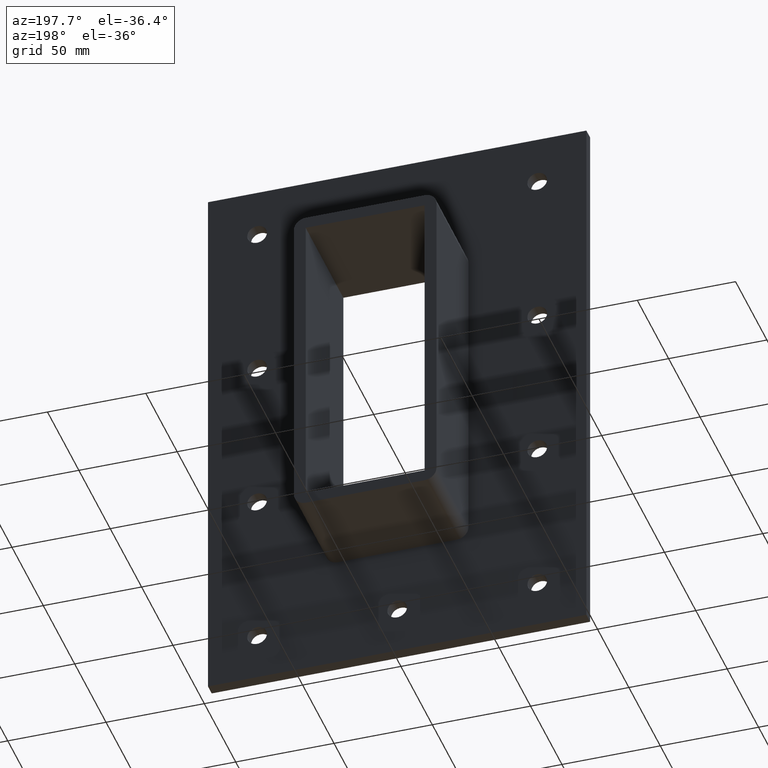
[diagram: clean part render]
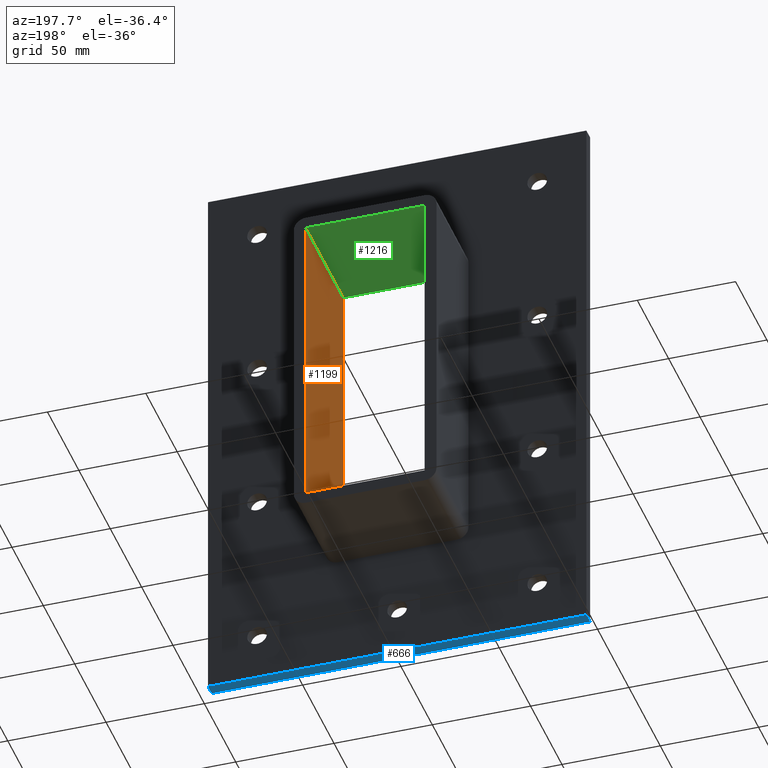
[diagram: same view with three faces highlighted in distinct colors, each labeled with its STEP entity id]
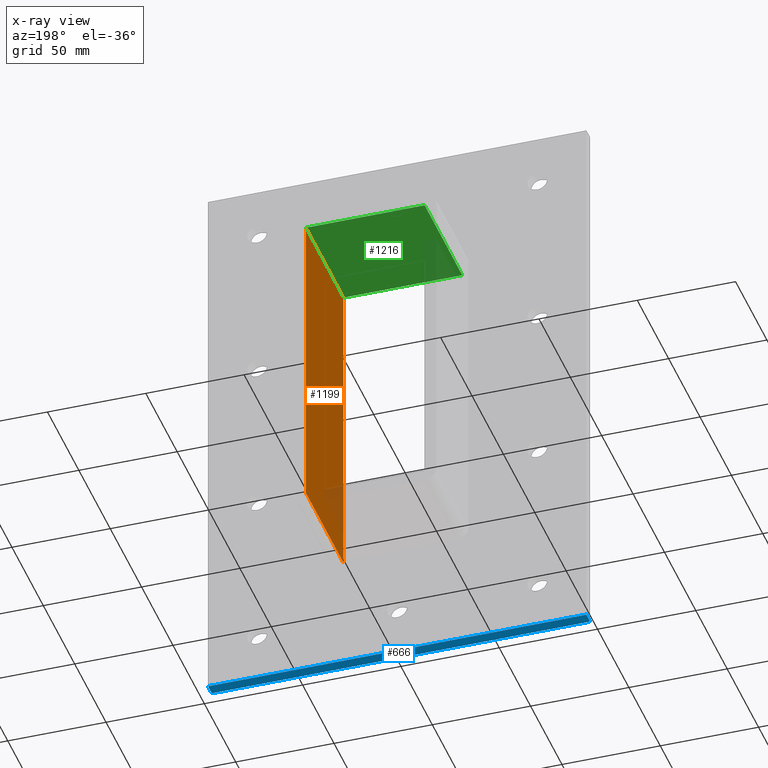
[diagram: x-ray of the same camera — body ghosted, the three highlighted faces saturated]
A machine part, auxiliary view with three faces highlighted in distinct colors.
The next image is the same camera in x-ray (body ghosted, the three faces saturated) — at least one of them is partly hidden behind the body in this view.
Their STEP definitions:

[orange] entity #1199 — the highlighted planar face has unit normal (1, 0, 0).
#1052=CARTESIAN_POINT('',(30.25,-3.0,79.750000000000014));
#1053=VERTEX_POINT('',#1052);
#1054=CARTESIAN_POINT('',(30.25,-3.0,-79.750000000000014));
#1055=VERTEX_POINT('',#1054);
#1056=CARTESIAN_POINT('',(30.25,-3.0,79.750000000000014));
#1057=DIRECTION('',(0.0,0.0,-1.0));
#1058=VECTOR('',#1057,159.50000000000006);
#1059=LINE('',#1056,#1058);
#1060=EDGE_CURVE('',#1053,#1055,#1059,.T.);
#1169=CARTESIAN_POINT('',(30.25,0.0,79.750000000000014));
#1170=DIRECTION('',(1.0,0.0,0.0));
#1171=DIRECTION('',(0.0,0.0,-1.0));
#1172=AXIS2_PLACEMENT_3D('',#1169,#1170,#1171);
#1173=PLANE('',#1172);
#1174=CARTESIAN_POINT('',(30.25,57.0,-79.750000000000014));
#1175=VERTEX_POINT('',#1174);
#1176=CARTESIAN_POINT('',(30.25,56.999999999999993,-79.750000000000014));
#1177=DIRECTION('',(0.0,-1.0,0.0));
#1178=VECTOR('',#1177,59.999999999999993);
#1179=LINE('',#1176,#1178);
#1180=EDGE_CURVE('',#1175,#1055,#1179,.T.);
#1181=ORIENTED_EDGE('',*,*,#1180,.T.);
#1182=ORIENTED_EDGE('',*,*,#1060,.F.);
#1183=CARTESIAN_POINT('',(30.25,57.0,79.750000000000014));
#1184=VERTEX_POINT('',#1183);
#1185=CARTESIAN_POINT('',(30.25,-3.0,79.750000000000014));
#1186=DIRECTION('',(0.0,1.0,0.0));
#1187=VECTOR('',#1186,60.0);
#1188=LINE('',#1185,#1187);
#1189=EDGE_CURVE('',#1053,#1184,#1188,.T.);
#1190=ORIENTED_EDGE('',*,*,#1189,.T.);
#1191=CARTESIAN_POINT('',(30.25,57.0,-79.750000000000028));
#1192=DIRECTION('',(0.0,0.0,1.0));
#1193=VECTOR('',#1192,159.50000000000006);
#1194=LINE('',#1191,#1193);
#1195=EDGE_CURVE('',#1175,#1184,#1194,.T.);
#1196=ORIENTED_EDGE('',*,*,#1195,.F.);
#1197=EDGE_LOOP('',(#1181,#1182,#1190,#1196));
#1198=FACE_OUTER_BOUND('',#1197,.T.);
#1199=ADVANCED_FACE('',(#1198),#1173,.F.);

[blue] entity #666 — the highlighted planar face has unit normal (0, 0, -1).
#363=CARTESIAN_POINT('',(96.25,6.000000000000001,-145.74999999999997));
#364=VERTEX_POINT('',#363);
#371=CARTESIAN_POINT('',(-96.25,6.000000000000001,-145.74999999999997));
#372=VERTEX_POINT('',#371);
#373=CARTESIAN_POINT('',(96.25,6.000000000000001,-145.75));
#374=DIRECTION('',(-1.0,0.0,0.0));
#375=VECTOR('',#374,192.5);
#376=LINE('',#373,#375);
#377=EDGE_CURVE('',#364,#372,#376,.T.);
#503=CARTESIAN_POINT('',(-96.25,0.0,-145.75));
#504=VERTEX_POINT('',#503);
#511=CARTESIAN_POINT('',(96.25,0.0,-145.75));
#512=VERTEX_POINT('',#511);
#513=CARTESIAN_POINT('',(96.25,0.0,-145.75));
#514=DIRECTION('',(-1.0,0.0,0.0));
#515=VECTOR('',#514,192.5);
#516=LINE('',#513,#515);
#517=EDGE_CURVE('',#512,#504,#516,.T.);
#641=CARTESIAN_POINT('',(-96.25,0.0,-145.75));
#642=DIRECTION('',(0.0,1.0,0.0));
#643=VECTOR('',#642,6.000000000000001);
#644=LINE('',#641,#643);
#645=EDGE_CURVE('',#504,#372,#644,.T.);
#650=CARTESIAN_POINT('',(96.25,0.0,-145.75));
#651=DIRECTION('',(0.0,0.0,-1.0));
#652=DIRECTION('',(-1.0,0.0,0.0));
#653=AXIS2_PLACEMENT_3D('',#650,#651,#652);
#654=PLANE('',#653);
#655=ORIENTED_EDGE('',*,*,#517,.T.);
#656=ORIENTED_EDGE('',*,*,#645,.T.);
#657=ORIENTED_EDGE('',*,*,#377,.F.);
#658=CARTESIAN_POINT('',(96.25,0.0,-145.75));
#659=DIRECTION('',(0.0,1.0,0.0));
#660=VECTOR('',#659,6.000000000000001);
#661=LINE('',#658,#660);
#662=EDGE_CURVE('',#512,#364,#661,.T.);
#663=ORIENTED_EDGE('',*,*,#662,.F.);
#664=EDGE_LOOP('',(#655,#656,#657,#663));
#665=FACE_OUTER_BOUND('',#664,.T.);
#666=ADVANCED_FACE('',(#665),#654,.T.);

[green] entity #1216 — the highlighted planar face has unit normal (0, 0, 1).
#711=CARTESIAN_POINT('',(-30.250000000000007,57.0,79.750000000000014));
#712=VERTEX_POINT('',#711);
#719=CARTESIAN_POINT('',(-30.250000000000007,-3.0,79.750000000000014));
#720=VERTEX_POINT('',#719);
#721=CARTESIAN_POINT('',(-30.250000000000004,-3.0,79.750000000000014));
#722=DIRECTION('',(0.0,1.0,0.0));
#723=VECTOR('',#722,60.0);
#724=LINE('',#721,#723);
#725=EDGE_CURVE('',#720,#712,#724,.T.);
#1052=CARTESIAN_POINT('',(30.25,-3.0,79.750000000000014));
#1053=VERTEX_POINT('',#1052);
#1069=CARTESIAN_POINT('',(-30.250000000000007,-3.0,79.750000000000014));
#1070=DIRECTION('',(1.0,0.0,0.0));
#1071=VECTOR('',#1070,60.500000000000007);
#1072=LINE('',#1069,#1071);
#1073=EDGE_CURVE('',#720,#1053,#1072,.T.);
#1183=CARTESIAN_POINT('',(30.25,57.0,79.750000000000014));
#1184=VERTEX_POINT('',#1183);
#1185=CARTESIAN_POINT('',(30.25,-3.0,79.750000000000014));
#1186=DIRECTION('',(0.0,1.0,0.0));
#1187=VECTOR('',#1186,60.0);
#1188=LINE('',#1185,#1187);
#1189=EDGE_CURVE('',#1053,#1184,#1188,.T.);
#1200=CARTESIAN_POINT('',(-30.250000000000004,0.0,79.750000000000014));
#1201=DIRECTION('',(0.0,0.0,1.0));
#1202=DIRECTION('',(1.0,0.0,0.0));
#1203=AXIS2_PLACEMENT_3D('',#1200,#1201,#1202);
#1204=PLANE('',#1203);
#1205=ORIENTED_EDGE('',*,*,#725,.T.);
#1206=CARTESIAN_POINT('',(30.25,57.0,79.750000000000014));
#1207=DIRECTION('',(-1.0,0.0,0.0));
#1208=VECTOR('',#1207,60.500000000000007);
#1209=LINE('',#1206,#1208);
#1210=EDGE_CURVE('',#1184,#712,#1209,.T.);
#1211=ORIENTED_EDGE('',*,*,#1210,.F.);
#1212=ORIENTED_EDGE('',*,*,#1189,.F.);
#1213=ORIENTED_EDGE('',*,*,#1073,.F.);
#1214=EDGE_LOOP('',(#1205,#1211,#1212,#1213));
#1215=FACE_OUTER_BOUND('',#1214,.T.);
#1216=ADVANCED_FACE('',(#1215),#1204,.F.);